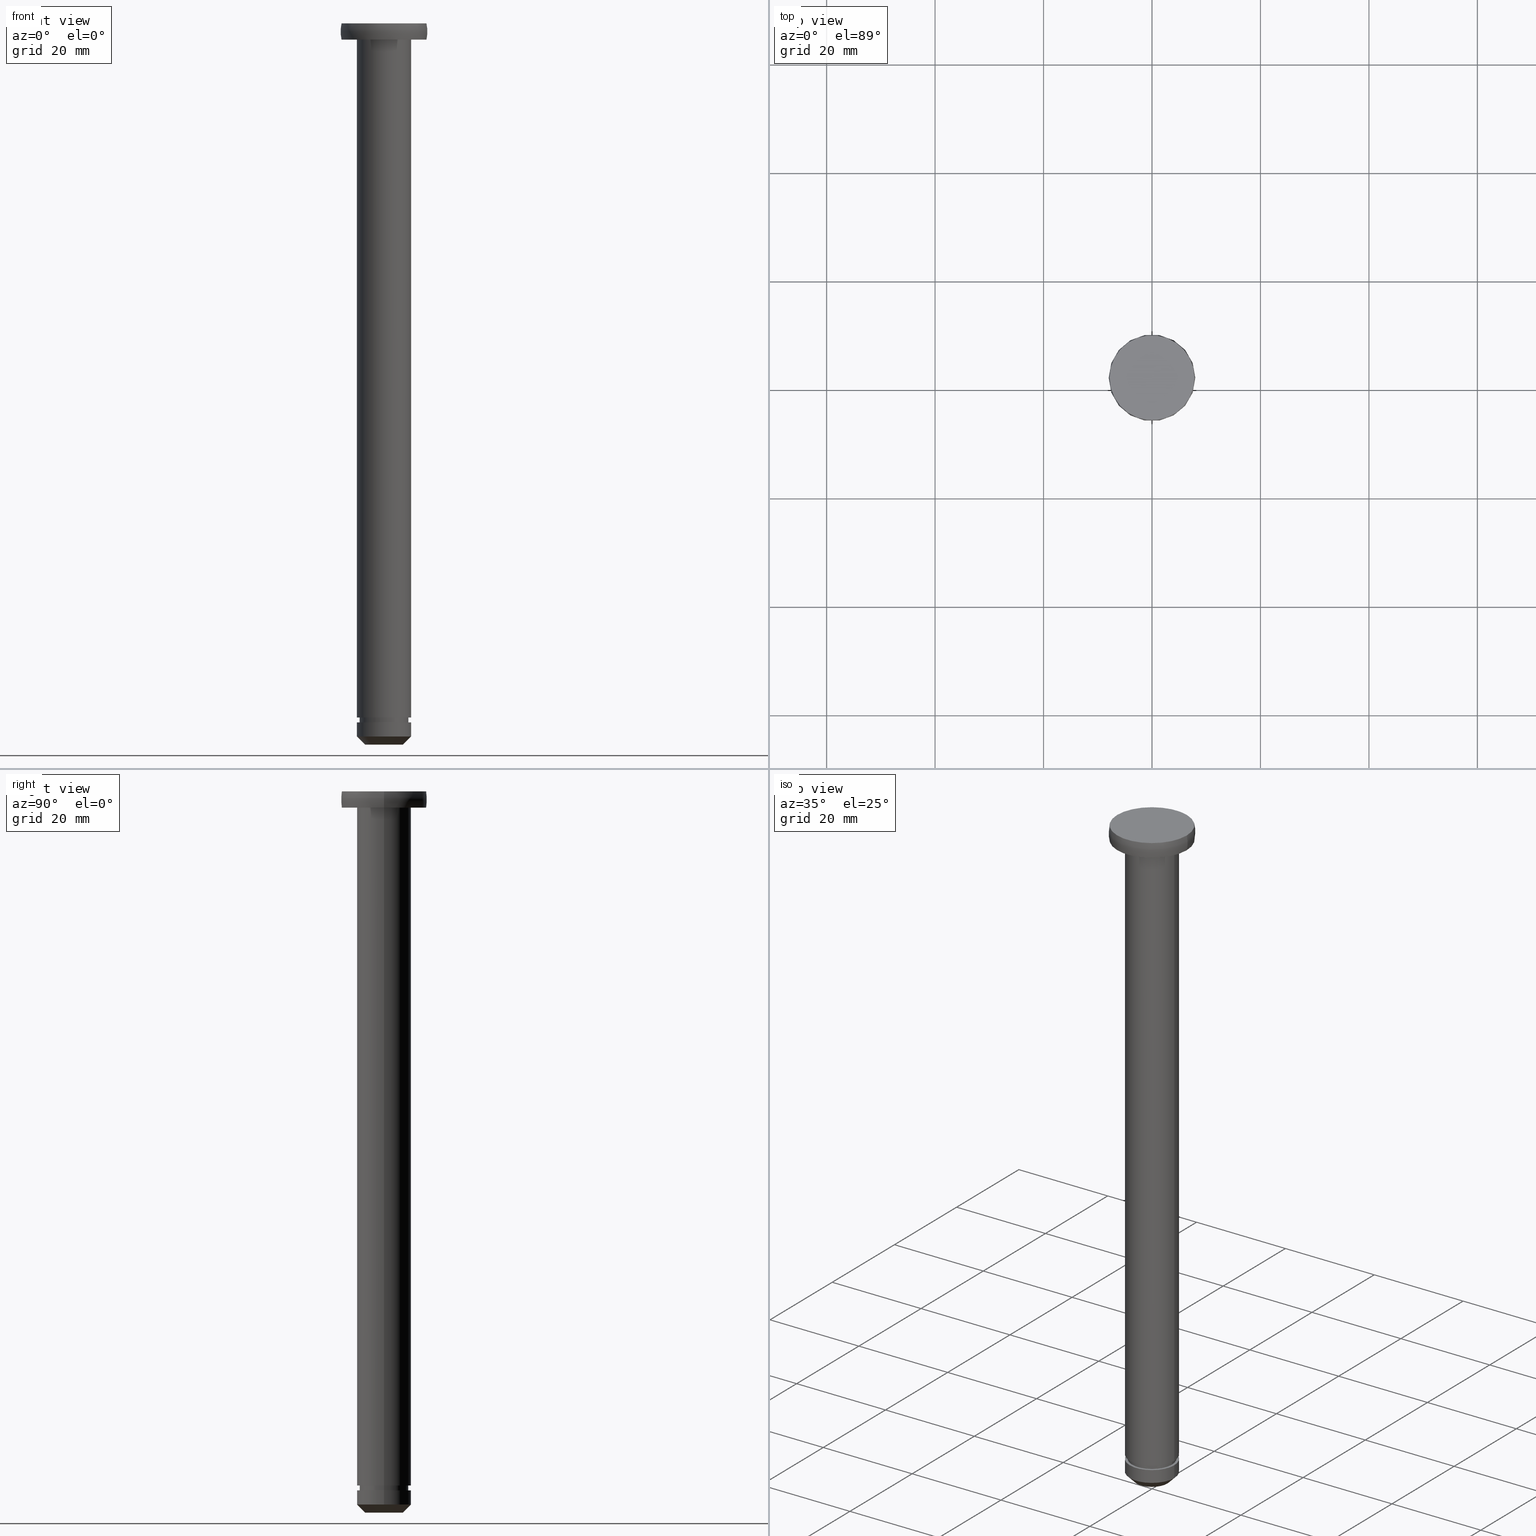
[diagram: canonical four-view strip — front | top / right | iso, engineering-drawing reading convention]
A machine part, canonical four-view strip (front | top / right | iso — engineering-drawing reading convention). The complete STEP part file that produces these views, byte-faithful:
ISO-10303-21;
HEADER;
FILE_DESCRIPTION (( 'STEP AP214' ),
    '1' );
FILE_NAME ('TH_121_10_130.STEP',
    '2016-08-24T02:03:50',
    ( '' ),
    ( '' ),
    'SwSTEP 2.0',
    'SolidWorks 2015',
    '' );
FILE_SCHEMA (( 'AUTOMOTIVE_DESIGN' ));
ENDSEC;

DATA;
#1 = DIRECTION ( 'NONE',  ( 0.0000000000000000000, 0.0000000000000000000, -1.000000000000000000 ) ) ;
#2 = DIRECTION ( 'NONE',  ( 0.0000000000000000000, 0.0000000000000000000, -1.000000000000000000 ) ) ;
#3 = AXIS2_PLACEMENT_3D ( 'NONE', #408, #1, #421 ) ;
#4 = MANIFOLD_SOLID_BREP ( '��]1', #20 ) ;
#5 = ORIENTED_EDGE ( 'NONE', *, *, #331, .T. ) ;
#6 = CARTESIAN_POINT ( 'NONE',  ( -3.500000000000000900, 4.286263797015737100E-016, -133.0000000360869900 ) ) ;
#7 = ORIENTED_EDGE ( 'NONE', *, *, #274, .T. ) ;
#8 = ORIENTED_EDGE ( 'NONE', *, *, #352, .T. ) ;
#9 = ORIENTED_EDGE ( 'NONE', *, *, #304, .T. ) ;
#10 = CARTESIAN_POINT ( 'NONE',  ( 0.0000000000000000000, 0.0000000000000000000, -3.000000018043495100 ) ) ;
#11 = CIRCLE ( 'NONE', #435, 3.500000000000000900 ) ;
#12 = ORIENTED_EDGE ( 'NONE', *, *, #174, .F. ) ;
#13 = CARTESIAN_POINT ( 'NONE',  ( -4.500000000000099500, 0.0000000000000000000, -128.9000000360869900 ) ) ;
#14 = VERTEX_POINT ( 'NONE', #204 ) ;
#15 = CARTESIAN_POINT ( 'NONE',  ( 0.0000000000000000000, 0.0000000000000000000, -128.9000000360869900 ) ) ;
#16 = ORIENTED_EDGE ( 'NONE', *, *, #188, .F. ) ;
#17 = CONICAL_SURFACE ( 'NONE', #58, 3.500000000000000900, 0.7853981633974520500 ) ;
#18 = CARTESIAN_POINT ( 'NONE',  ( 4.500000000000099500, 5.510910596163210800E-016, -3.280275378074167100E-014 ) ) ;
#19 = FACE_OUTER_BOUND ( 'NONE', #163, .T. ) ;
#20 = CLOSED_SHELL ( 'NONE', ( #130, #460, #41, #251, #97, #322, #278, #242, #218, #109, #74, #404, #166, #430, #364 ) ) ;
#21 = ORIENTED_EDGE ( 'NONE', *, *, #99, .F. ) ;
#22 = AXIS2_PLACEMENT_3D ( 'NONE', #141, #431, #298 ) ;
#23 = CARTESIAN_POINT ( 'NONE',  ( 0.0000000000000000000, 0.0000000000000000000, -131.5000000360869900 ) ) ;
#24 = DIRECTION ( 'NONE',  ( -1.000000000000000000, 0.0000000000000000000, 0.0000000000000000000 ) ) ;
#25 = ORIENTED_EDGE ( 'NONE', *, *, #69, .T. ) ;
#26 = ADVANCED_BREP_SHAPE_REPRESENTATION ( '', ( #4, #398 ), #465 ) ;
#27 = VECTOR ( 'NONE', #334, 1000.000000000000000 ) ;
#28 = CIRCLE ( 'NONE', #345, 5.000000000000013300 ) ;
#29 = CARTESIAN_POINT ( 'NONE',  ( -7.828427118366898100, 0.0000000000000000000, -3.280275356898344000E-014 ) ) ;
#30 = APPLICATION_CONTEXT ( 'automotive_design' ) ;
#31 = DIRECTION ( 'NONE',  ( 0.0000000000000000000, 0.0000000000000000000, -1.000000000000000000 ) ) ;
#32 = AXIS2_PLACEMENT_3D ( 'NONE', #138, #61, #151 ) ;
#33 = VECTOR ( 'NONE', #337, 1000.000000000000000 ) ;
#34 = DIRECTION ( 'NONE',  ( 0.0000000000000000000, -0.0000000000000000000, 1.000000000000000000 ) ) ;
#35 = ORIENTED_EDGE ( 'NONE', *, *, #250, .T. ) ;
#36 = CARTESIAN_POINT ( 'NONE',  ( 0.0000000000000000000, 0.0000000000000000000, -131.5000000360869900 ) ) ;
#37 =( GEOMETRIC_REPRESENTATION_CONTEXT ( 3 ) GLOBAL_UNCERTAINTY_ASSIGNED_CONTEXT ( ( #185 ) ) GLOBAL_UNIT_ASSIGNED_CONTEXT ( ( #66, #152, #117 ) ) REPRESENTATION_CONTEXT ( 'NONE', 'WORKASPACE' ) );
#38 = DIRECTION ( 'NONE',  ( 1.000000000000000000, 0.0000000000000000000, 0.0000000000000000000 ) ) ;
#39 = DIRECTION ( 'NONE',  ( 0.0000000000000000000, 0.0000000000000000000, -1.000000000000000000 ) ) ;
#40 = CARTESIAN_POINT ( 'NONE',  ( 0.0000000000000000000, 0.0000000000000000000, -3.280275378074167100E-014 ) ) ;
#41 = ADVANCED_FACE ( 'NONE', ( #452 ), #281, .T. ) ;
#42 = AXIS2_PLACEMENT_3D ( 'NONE', #381, #349, #343 ) ;
#43 = DIRECTION ( 'NONE',  ( -1.000000000000000000, 0.0000000000000000000, 0.0000000000000000000 ) ) ;
#44 = DIRECTION ( 'NONE',  ( 0.0000000000000000000, 0.0000000000000000000, 1.000000000000000000 ) ) ;
#45 = DIRECTION ( 'NONE',  ( -1.000000000000000000, 0.0000000000000000000, -0.0000000000000000000 ) ) ;
#46 = ORIENTED_EDGE ( 'NONE', *, *, #358, .T. ) ;
#47 = EDGE_CURVE ( 'NONE', #433, #445, #416, .T. ) ;
#48 = DIRECTION ( 'NONE',  ( 1.000000000000000000, 0.0000000000000000000, 0.0000000000000000000 ) ) ;
#49 = STYLED_ITEM ( 'NONE', ( #123 ), #26 ) ;
#50 = VECTOR ( 'NONE', #380, 1000.000000000000000 ) ;
#51 = AXIS2_PLACEMENT_3D ( 'NONE', #267, #450, #375 ) ;
#52 = DIRECTION ( 'NONE',  ( 0.0000000000000000000, 0.0000000000000000000, -1.000000000000000000 ) ) ;
#53 = SHAPE_REPRESENTATION ( 'TH_121_10_130', ( #262, #210 ), #239 ) ;
#54 = PLANE ( 'NONE',  #314 ) ;
#55 = CARTESIAN_POINT ( 'NONE',  ( -5.000000000000000000, 0.0000000000000000000, -128.0000000360869900 ) ) ;
#56 = CARTESIAN_POINT ( 'NONE',  ( 0.0000000000000000000, 0.0000000000000000000, -128.9000000360869900 ) ) ;
#57 = SURFACE_STYLE_USAGE ( .BOTH. , #307 ) ;
#58 = AXIS2_PLACEMENT_3D ( 'NONE', #365, #444, #48 ) ;
#59 = DIRECTION ( 'NONE',  ( -1.000000000000000000, 0.0000000000000000000, 0.0000000000000000000 ) ) ;
#60 = COLOUR_RGB ( '',0.7921568627450980000, 0.8196078431372548800, 0.9333333333333333500 ) ;
#61 = DIRECTION ( 'NONE',  ( 0.0000000000000000000, 0.0000000000000000000, -1.000000000000000000 ) ) ;
#62 = CIRCLE ( 'NONE', #382, 5.000000000000000000 ) ;
#63 = CARTESIAN_POINT ( 'NONE',  ( 0.0000000000000000000, 0.0000000000000000000, -1.500000009021790000 ) ) ;
#64 = EDGE_CURVE ( 'NONE', #420, #216, #98, .T. ) ;
#65 = AXIS2_PLACEMENT_3D ( 'NONE', #120, #406, #215 ) ;
#66 =( LENGTH_UNIT ( ) NAMED_UNIT ( * ) SI_UNIT ( .MILLI., .METRE. ) );
#67 = CIRCLE ( 'NONE', #272, 5.000000000000000000 ) ;
#68 = AXIS2_PLACEMENT_3D ( 'NONE', #428, #159, #351 ) ;
#69 = EDGE_CURVE ( 'NONE', #433, #342, #217, .T. ) ;
#70 = PRESENTATION_LAYER_ASSIGNMENT (  '', '', ( #49 ) ) ;
#71 = ITEM_DEFINED_TRANSFORMATION ( 'NONE', 'NONE', #210,  #398 ) ;
#72 = LINE ( 'NONE', #154, #336 ) ;
#73 = PRODUCT_CONTEXT ( 'NONE', #30, 'mechanical' ) ;
#74 = ADVANCED_FACE ( 'NONE', ( #308, #179 ), #54, .T. ) ;
#75 = ORIENTED_EDGE ( 'NONE', *, *, #271, .F. ) ;
#76 = VERTEX_POINT ( 'NONE', #155 ) ;
#77 = CYLINDRICAL_SURFACE ( 'NONE', #22, 4.500000000000099500 ) ;
#78 = ORIENTED_EDGE ( 'NONE', *, *, #194, .F. ) ;
#79 = APPLICATION_CONTEXT ( 'automotive_design' ) ;
#80 = TOROIDAL_SURFACE ( 'NONE', #241, 1.357233208769998100, 6.642766791230085800 ) ;
#81 = CARTESIAN_POINT ( 'NONE',  ( -3.500000000000000900, 5.204748896376259600E-016, -133.0000000360869900 ) ) ;
#82 = ORIENTED_EDGE ( 'NONE', *, *, #64, .T. ) ;
#83 = EDGE_CURVE ( 'NONE', #14, #90, #320, .T. ) ;
#84 = TOROIDAL_SURFACE ( 'NONE', #169, 1.357233208769998100, 6.642766791230085800 ) ;
#85 = CARTESIAN_POINT ( 'NONE',  ( 7.828427118366898100, 9.587058212866361900E-016, -3.280275356898344000E-014 ) ) ;
#86 = FACE_OUTER_BOUND ( 'NONE', #114, .T. ) ;
#87 = CARTESIAN_POINT ( 'NONE',  ( -4.500000000000099500, 0.0000000000000000000, -3.280275378074167100E-014 ) ) ;
#88 = DIRECTION ( 'NONE',  ( 0.0000000000000000000, 0.0000000000000000000, -1.000000000000000000 ) ) ;
#89 = ORIENTED_EDGE ( 'NONE', *, *, #135, .F. ) ;
#90 = VERTEX_POINT ( 'NONE', #321 ) ;
#91 = ORIENTED_EDGE ( 'NONE', *, *, #277, .F. ) ;
#92 = CARTESIAN_POINT ( 'NONE',  ( -5.000000000000000000, 0.0000000000000000000, -3.000000018043495100 ) ) ;
#93 = VERTEX_POINT ( 'NONE', #195 ) ;
#94 = ORIENTED_EDGE ( 'NONE', *, *, #277, .T. ) ;
#95 = MECHANICAL_DESIGN_GEOMETRIC_PRESENTATION_REPRESENTATION (  '', ( #49 ), #115 ) ;
#96 = FILL_AREA_STYLE_COLOUR ( '', #324 ) ;
#97 = ADVANCED_FACE ( 'NONE', ( #19 ), #80, .T. ) ;
#98 = CIRCLE ( 'NONE', #213, 7.828427118366898100 ) ;
#99 = EDGE_CURVE ( 'NONE', #445, #129, #390, .T. ) ;
#100 = AXIS2_PLACEMENT_3D ( 'NONE', #229, #264, #230 ) ;
#101 = LINE ( 'NONE', #158, #299 ) ;
#102 = CIRCLE ( 'NONE', #402, 5.000000000000013300 ) ;
#103 = FACE_OUTER_BOUND ( 'NONE', #403, .T. ) ;
#104 = SURFACE_STYLE_USAGE ( .BOTH. , #356 ) ;
#105 = APPLICATION_PROTOCOL_DEFINITION ( 'draft international standard', 'automotive_design', 1998, #79 ) ;
#106 = EDGE_CURVE ( 'NONE', #379, #199, #72, .T. ) ;
#107 = CARTESIAN_POINT ( 'NONE',  ( 0.0000000000000000000, 0.0000000000000000000, 0.0000000000000000000 ) ) ;
#108 = CYLINDRICAL_SURFACE ( 'NONE', #65, 5.000000000000006200 ) ;
#109 = ADVANCED_FACE ( 'NONE', ( #142 ), #108, .T. ) ;
#110 = ORIENTED_EDGE ( 'NONE', *, *, #143, .T. ) ;
#111 = ORIENTED_EDGE ( 'NONE', *, *, #405, .T. ) ;
#112 = DIRECTION ( 'NONE',  ( 1.000000000000000000, 0.0000000000000000000, 0.0000000000000000000 ) ) ;
#113 = EDGE_LOOP ( 'NONE', ( #270, #268, #330, #243 ) ) ;
#114 = EDGE_LOOP ( 'NONE', ( #12, #333, #220, #339 ) ) ;
#115 =( GEOMETRIC_REPRESENTATION_CONTEXT ( 3 ) GLOBAL_UNCERTAINTY_ASSIGNED_CONTEXT ( ( #134 ) ) GLOBAL_UNIT_ASSIGNED_CONTEXT ( ( #464, #168, #440 ) ) REPRESENTATION_CONTEXT ( 'NONE', 'WORKASPACE' ) );
#116 = CARTESIAN_POINT ( 'NONE',  ( -1.357233208769998100, 0.0000000000000000000, -1.500000009021790000 ) ) ;
#117 =( NAMED_UNIT ( * ) SI_UNIT ( $, .STERADIAN. ) SOLID_ANGLE_UNIT ( ) );
#118 = DIRECTION ( 'NONE',  ( 0.0000000000000000000, -0.0000000000000000000, 1.000000000000000000 ) ) ;
#119 = CARTESIAN_POINT ( 'NONE',  ( 0.0000000000000000000, 0.0000000000000000000, -3.000000018043520000 ) ) ;
#120 = CARTESIAN_POINT ( 'NONE',  ( 0.0000000000000000000, 0.0000000000000000000, -3.280275378074167100E-014 ) ) ;
#121 = DIRECTION ( 'NONE',  ( 0.0000000000000000000, 0.0000000000000000000, -1.000000000000000000 ) ) ;
#122 = AXIS2_PLACEMENT_3D ( 'NONE', #234, #118, #275 ) ;
#123 = PRESENTATION_STYLE_ASSIGNMENT (( #104 ) ) ;
#124 = DIRECTION ( 'NONE',  ( -1.000000000000000000, 0.0000000000000000000, 0.0000000000000000000 ) ) ;
#125 = VERTEX_POINT ( 'NONE', #256 ) ;
#126 = CONICAL_SURFACE ( 'NONE', #156, 3.500000000000000900, 0.7853981633974520500 ) ;
#127 = CARTESIAN_POINT ( 'NONE',  ( 5.000000000000000000, 0.0000000000000000000, -3.000000018043507600 ) ) ;
#128 = PRESENTATION_LAYER_ASSIGNMENT (  '', '', ( #316 ) ) ;
#129 = VERTEX_POINT ( 'NONE', #363 ) ;
#130 = ADVANCED_FACE ( 'NONE', ( #286 ), #360, .T. ) ;
#131 = AXIS2_PLACEMENT_3D ( 'NONE', #348, #88, #45 ) ;
#132 = APPLICATION_CONTEXT ( 'automotive_design' ) ;
#133 = ORIENTED_EDGE ( 'NONE', *, *, #226, .T. ) ;
#134 = UNCERTAINTY_MEASURE_WITH_UNIT (LENGTH_MEASURE( 1.000000000000000100E-005 ), #464, 'distance_accuracy_value', 'NONE');
#135 = EDGE_CURVE ( 'NONE', #445, #433, #263, .T. ) ;
#136 = DIRECTION ( 'NONE',  ( 0.0000000000000000000, 0.0000000000000000000, 1.000000000000000000 ) ) ;
#137 = EDGE_LOOP ( 'NONE', ( #280, #89 ) ) ;
#138 = CARTESIAN_POINT ( 'NONE',  ( 0.0000000000000000000, 0.0000000000000000000, -133.0000000360869900 ) ) ;
#139 = CARTESIAN_POINT ( 'NONE',  ( -5.000000000000006200, 0.0000000000000000000, -3.280275378074167100E-014 ) ) ;
#140 = EDGE_LOOP ( 'NONE', ( #91, #35, #7, #78 ) ) ;
#141 = CARTESIAN_POINT ( 'NONE',  ( 0.0000000000000000000, 0.0000000000000000000, -3.280275378074167100E-014 ) ) ;
#142 = FACE_OUTER_BOUND ( 'NONE', #140, .T. ) ;
#143 = EDGE_CURVE ( 'NONE', #379, #191, #11, .T. ) ;
#144 = DIRECTION ( 'NONE',  ( 0.0000000000000000000, 0.0000000000000000000, -1.000000000000000000 ) ) ;
#145 = AXIS2_PLACEMENT_3D ( 'NONE', #10, #200, #309 ) ;
#146 = ORIENTED_EDGE ( 'NONE', *, *, #250, .F. ) ;
#147 = DIRECTION ( 'NONE',  ( -1.000000000000000000, 0.0000000000000000000, 0.0000000000000000000 ) ) ;
#148 = CARTESIAN_POINT ( 'NONE',  ( 5.000000000000000000, 6.123233995736766300E-016, -128.0000000360869900 ) ) ;
#149 = FACE_BOUND ( 'NONE', #436, .T. ) ;
#150 = CARTESIAN_POINT ( 'NONE',  ( 0.0000000000000000000, 0.0000000000000000000, -133.0000000360869900 ) ) ;
#151 = DIRECTION ( 'NONE',  ( -1.000000000000000000, 0.0000000000000000000, -0.0000000000000000000 ) ) ;
#152 =( NAMED_UNIT ( * ) PLANE_ANGLE_UNIT ( ) SI_UNIT ( $, .RADIAN. ) );
#153 = PLANE ( 'NONE',  #131 ) ;
#154 = CARTESIAN_POINT ( 'NONE',  ( 3.500000000000000900, 0.0000000000000000000, -133.0000000360869900 ) ) ;
#155 = CARTESIAN_POINT ( 'NONE',  ( -5.000000000000000000, 0.0000000000000000000, -128.9000000360869900 ) ) ;
#156 = AXIS2_PLACEMENT_3D ( 'NONE', #446, #255, #269 ) ;
#157 = DIRECTION ( 'NONE',  ( 0.0000000000000000000, 0.0000000000000000000, -1.000000000000000000 ) ) ;
#158 = CARTESIAN_POINT ( 'NONE',  ( 5.000000000000000000, 6.123233995736766300E-016, -3.280275378074167100E-014 ) ) ;
#159 = DIRECTION ( 'NONE',  ( 0.0000000000000000000, 0.0000000000000000000, -1.000000000000000000 ) ) ;
#160 = ORIENTED_EDGE ( 'NONE', *, *, #174, .T. ) ;
#161 = SHAPE_DEFINITION_REPRESENTATION ( #391, #192 ) ;
#162 = AXIS2_PLACEMENT_3D ( 'NONE', #429, #190, #231 ) ;
#163 = EDGE_LOOP ( 'NONE', ( #82, #312, #468, #313 ) ) ;
#164 = PRODUCT_DEFINITION_SHAPE ( 'NONE', 'NONE',  #469 ) ;
#165 = CARTESIAN_POINT ( 'NONE',  ( 0.0000000000000000000, 0.0000000000000000000, -3.280275378074167100E-014 ) ) ;
#166 = ADVANCED_FACE ( 'NONE', ( #276, #184 ), #153, .T. ) ;
#167 = DIRECTION ( 'NONE',  ( 0.0000000000000000000, 0.0000000000000000000, -1.000000000000000000 ) ) ;
#168 =( NAMED_UNIT ( * ) PLANE_ANGLE_UNIT ( ) SI_UNIT ( $, .RADIAN. ) );
#169 = AXIS2_PLACEMENT_3D ( 'NONE', #63, #144, #124 ) ;
#170 = CARTESIAN_POINT ( 'NONE',  ( 0.0000000000000000000, 0.0000000000000000000, 0.0000000000000000000 ) ) ;
#171 = DIRECTION ( 'NONE',  ( 1.000000000000000000, 0.0000000000000000000, 0.0000000000000000000 ) ) ;
#172 = ORIENTED_EDGE ( 'NONE', *, *, #415, .T. ) ;
#173 = LINE ( 'NONE', #232, #27 ) ;
#174 = EDGE_CURVE ( 'NONE', #191, #93, #377, .T. ) ;
#175 = APPLICATION_PROTOCOL_DEFINITION ( 'draft international standard', 'automotive_design', 1998, #467 ) ;
#176 = PRODUCT_DEFINITION_SHAPE ( 'NONE', 'NONE',  #340 ) ;
#177 = DIRECTION ( 'NONE',  ( -1.000000000000000000, 0.0000000000000000000, 0.0000000000000000000 ) ) ;
#178 = DIRECTION ( 'NONE',  ( -1.000000000000000000, 0.0000000000000000000, 0.0000000000000000000 ) ) ;
#179 = FACE_OUTER_BOUND ( 'NONE', #260, .T. ) ;
#180 = ORIENTED_EDGE ( 'NONE', *, *, #358, .F. ) ;
#181 = CARTESIAN_POINT ( 'NONE',  ( -5.000000000000000000, 0.0000000000000000000, -3.280275378074167100E-014 ) ) ;
#182 = DIRECTION ( 'NONE',  ( -1.000000000000000000, 0.0000000000000000000, 0.0000000000000000000 ) ) ;
#183 = DIRECTION ( 'NONE',  ( -1.000000000000000000, 0.0000000000000000000, 0.0000000000000000000 ) ) ;
#184 = FACE_BOUND ( 'NONE', #137, .T. ) ;
#185 = UNCERTAINTY_MEASURE_WITH_UNIT (LENGTH_MEASURE( 1.000000000000000100E-005 ), #66, 'distance_accuracy_value', 'NONE');
#186 = AXIS2_PLACEMENT_3D ( 'NONE', #107, #136, #171 ) ;
#187 = ORIENTED_EDGE ( 'NONE', *, *, #405, .F. ) ;
#188 = EDGE_CURVE ( 'NONE', #216, #420, #302, .T. ) ;
#189 = DIRECTION ( 'NONE',  ( 0.0000000000000000000, 0.0000000000000000000, -1.000000000000000000 ) ) ;
#190 = DIRECTION ( 'NONE',  ( 0.0000000000000000000, 0.0000000000000000000, -1.000000000000000000 ) ) ;
#191 = VERTEX_POINT ( 'NONE', #81 ) ;
#192 = SHAPE_REPRESENTATION ( 'shaft', ( #398 ), #465 ) ;
#193 = DIRECTION ( 'NONE',  ( 0.0000000000000000000, 0.0000000000000000000, -1.000000000000000000 ) ) ;
#194 = EDGE_CURVE ( 'NONE', #199, #93, #102, .T. ) ;
#195 = CARTESIAN_POINT ( 'NONE',  ( -5.000000000000013300, 6.123233995736782100E-016, -131.5000000360869900 ) ) ;
#196 = AXIS2_PLACEMENT_3D ( 'NONE', #119, #227, #350 ) ;
#197 = DIRECTION ( 'NONE',  ( 0.0000000000000000000, 0.0000000000000000000, -1.000000000000000000 ) ) ;
#198 = EDGE_LOOP ( 'NONE', ( #133, #94, #187, #319 ) ) ;
#199 = VERTEX_POINT ( 'NONE', #318 ) ;
#200 = DIRECTION ( 'NONE',  ( 0.0000000000000000000, 0.0000000000000000000, -1.000000000000000000 ) ) ;
#201 = VERTEX_POINT ( 'NONE', #92 ) ;
#202 = FILL_AREA_STYLE ('',( #240 ) ) ;
#203 =( REPRESENTATION_RELATIONSHIP ('NONE','NONE', #53, #192 ) REPRESENTATION_RELATIONSHIP_WITH_TRANSFORMATION ( #71 )SHAPE_REPRESENTATION_RELATIONSHIP( ) );
#204 = CARTESIAN_POINT ( 'NONE',  ( -7.828427118366898100, 0.0000000000000000000, -3.000000018043520000 ) ) ;
#205 = FILL_AREA_STYLE ('',( #96 ) ) ;
#206 = ORIENTED_EDGE ( 'NONE', *, *, #64, .F. ) ;
#207 = LINE ( 'NONE', #181, #341 ) ;
#208 = ORIENTED_EDGE ( 'NONE', *, *, #438, .F. ) ;
#209 = DIRECTION ( 'NONE',  ( 1.000000000000000000, 0.0000000000000000000, 0.0000000000000000000 ) ) ;
#210 = AXIS2_PLACEMENT_3D ( 'NONE', #170, #44, #112 ) ;
#211 = ORIENTED_EDGE ( 'NONE', *, *, #352, .F. ) ;
#212 = EDGE_CURVE ( 'NONE', #201, #246, #207, .T. ) ;
#213 = AXIS2_PLACEMENT_3D ( 'NONE', #238, #456, #24 ) ;
#214 = DIRECTION ( 'NONE',  ( 0.0000000000000000000, 0.0000000000000000000, 1.000000000000000000 ) ) ;
#215 = DIRECTION ( 'NONE',  ( -1.000000000000000000, 0.0000000000000000000, 0.0000000000000000000 ) ) ;
#216 = VERTEX_POINT ( 'NONE', #85 ) ;
#217 = LINE ( 'NONE', #87, #290 ) ;
#218 = ADVANCED_FACE ( 'NONE', ( #86 ), #126, .T. ) ;
#219 = DIRECTION ( 'NONE',  ( -1.000000000000000000, 0.0000000000000000000, 0.0000000000000000000 ) ) ;
#220 = ORIENTED_EDGE ( 'NONE', *, *, #106, .T. ) ;
#221 = SURFACE_STYLE_FILL_AREA ( #205 ) ;
#222 = PRODUCT_CONTEXT ( 'NONE', #79, 'mechanical' ) ;
#223 = AXIS2_PLACEMENT_3D ( 'NONE', #412, #252, #388 ) ;
#224 = EDGE_CURVE ( 'NONE', #129, #342, #386, .T. ) ;
#225 = CARTESIAN_POINT ( 'NONE',  ( 0.0000000000000000000, 0.0000000000000000000, -128.0000000360869900 ) ) ;
#226 = EDGE_CURVE ( 'NONE', #76, #125, #62, .T. ) ;
#227 = DIRECTION ( 'NONE',  ( 0.0000000000000000000, 0.0000000000000000000, -1.000000000000000000 ) ) ;
#228 = DIRECTION ( 'NONE',  ( 1.000000000000000000, 0.0000000000000000000, 0.0000000000000000000 ) ) ;
#229 = CARTESIAN_POINT ( 'NONE',  ( 0.0000000000000000000, 0.0000000000000000000, -128.9000000360869900 ) ) ;
#230 = DIRECTION ( 'NONE',  ( -1.000000000000000000, 0.0000000000000000000, 0.0000000000000000000 ) ) ;
#231 = DIRECTION ( 'NONE',  ( -1.000000000000000000, 0.0000000000000000000, 0.0000000000000000000 ) ) ;
#232 = CARTESIAN_POINT ( 'NONE',  ( 5.000000000000006200, 6.123233995736773200E-016, -3.280275378074167100E-014 ) ) ;
#233 = ORIENTED_EDGE ( 'NONE', *, *, #397, .T. ) ;
#234 = CARTESIAN_POINT ( 'NONE',  ( 7.828427118366898100, 0.0000000000000000000, -3.280275367486255800E-014 ) ) ;
#235 = EDGE_CURVE ( 'NONE', #420, #14, #357, .T. ) ;
#236 = CARTESIAN_POINT ( 'NONE',  ( 5.000000000000000000, 6.123233995736766300E-016, -3.000000018043495100 ) ) ;
#237 = EDGE_CURVE ( 'NONE', #191, #379, #258, .T. ) ;
#238 = CARTESIAN_POINT ( 'NONE',  ( 0.0000000000000000000, 0.0000000000000000000, -3.280275356898344000E-014 ) ) ;
#239 =( GEOMETRIC_REPRESENTATION_CONTEXT ( 3 ) GLOBAL_UNCERTAINTY_ASSIGNED_CONTEXT ( ( #315 ) ) GLOBAL_UNIT_ASSIGNED_CONTEXT ( ( #366, #354, #393 ) ) REPRESENTATION_CONTEXT ( 'NONE', 'WORKASPACE' ) );
#240 = FILL_AREA_STYLE_COLOUR ( '', #60 ) ;
#241 = AXIS2_PLACEMENT_3D ( 'NONE', #293, #157, #59 ) ;
#242 = ADVANCED_FACE ( 'NONE', ( #257 ), #449, .T. ) ;
#243 = ORIENTED_EDGE ( 'NONE', *, *, #69, .F. ) ;
#244 = APPLICATION_PROTOCOL_DEFINITION ( 'draft international standard', 'automotive_design', 1998, #30 ) ;
#245 = DIRECTION ( 'NONE',  ( -1.000000000000000000, 0.0000000000000000000, 0.0000000000000000000 ) ) ;
#246 = VERTEX_POINT ( 'NONE', #55 ) ;
#247 = CONTEXT_DEPENDENT_SHAPE_REPRESENTATION ( #203, #164 ) ;
#248 = ORIENTED_EDGE ( 'NONE', *, *, #224, .F. ) ;
#249 = FACE_OUTER_BOUND ( 'NONE', #400, .T. ) ;
#250 = EDGE_CURVE ( 'NONE', #125, #76, #376, .T. ) ;
#251 = ADVANCED_FACE ( 'NONE', ( #327 ), #17, .T. ) ;
#252 = DIRECTION ( 'NONE',  ( 0.0000000000000000000, 0.0000000000000000000, -1.000000000000000000 ) ) ;
#253 = DIRECTION ( 'NONE',  ( 0.0000000000000000000, 0.0000000000000000000, -1.000000000000000000 ) ) ;
#254 = ORIENTED_EDGE ( 'NONE', *, *, #235, .T. ) ;
#255 = DIRECTION ( 'NONE',  ( -0.0000000000000000000, -0.0000000000000000000, 1.000000000000000000 ) ) ;
#256 = CARTESIAN_POINT ( 'NONE',  ( 5.000000000000000000, 6.123233995736770200E-016, -128.9000000360869900 ) ) ;
#257 = FACE_OUTER_BOUND ( 'NONE', #392, .T. ) ;
#258 = CIRCLE ( 'NONE', #432, 3.500000000000000900 ) ;
#259 = CARTESIAN_POINT ( 'NONE',  ( 0.0000000000000000000, 0.0000000000000000000, 0.0000000000000000000 ) ) ;
#260 = EDGE_LOOP ( 'NONE', ( #284, #146 ) ) ;
#261 = SHAPE_DEFINITION_REPRESENTATION ( #176, #53 ) ;
#262 = AXIS2_PLACEMENT_3D ( 'NONE', #463, #439, #209 ) ;
#263 = CIRCLE ( 'NONE', #311, 4.500000000000099500 ) ;
#264 = DIRECTION ( 'NONE',  ( 0.0000000000000000000, 0.0000000000000000000, -1.000000000000000000 ) ) ;
#265 = DIRECTION ( 'NONE',  ( -0.7071067811865501300, 8.659560562354964900E-017, 0.7071067811865449100 ) ) ;
#266 = FACE_OUTER_BOUND ( 'NONE', #458, .T. ) ;
#267 = CARTESIAN_POINT ( 'NONE',  ( 0.0000000000000000000, 0.0000000000000000000, -3.280275356898344000E-014 ) ) ;
#268 = ORIENTED_EDGE ( 'NONE', *, *, #99, .T. ) ;
#269 = DIRECTION ( 'NONE',  ( 1.000000000000000000, 0.0000000000000000000, 0.0000000000000000000 ) ) ;
#270 = ORIENTED_EDGE ( 'NONE', *, *, #47, .T. ) ;
#271 = EDGE_CURVE ( 'NONE', #353, #384, #101, .T. ) ;
#272 = AXIS2_PLACEMENT_3D ( 'NONE', #225, #323, #182 ) ;
#273 = DIRECTION ( 'NONE',  ( 0.0000000000000000000, 0.0000000000000000000, -1.000000000000000000 ) ) ;
#274 = EDGE_CURVE ( 'NONE', #76, #93, #459, .T. ) ;
#275 = DIRECTION ( 'NONE',  ( 1.000000000000000000, 0.0000000000000000000, 0.0000000000000000000 ) ) ;
#276 = FACE_OUTER_BOUND ( 'NONE', #279, .T. ) ;
#277 = EDGE_CURVE ( 'NONE', #125, #199, #173, .T. ) ;
#278 = ADVANCED_FACE ( 'NONE', ( #305 ), #424, .T. ) ;
#279 = EDGE_LOOP ( 'NONE', ( #46, #233 ) ) ;
#280 = ORIENTED_EDGE ( 'NONE', *, *, #47, .F. ) ;
#281 = CYLINDRICAL_SURFACE ( 'NONE', #68, 5.000000000000006200 ) ;
#282 = CYLINDRICAL_SURFACE ( 'NONE', #371, 4.500000000000099500 ) ;
#283 =( NAMED_UNIT ( * ) PLANE_ANGLE_UNIT ( ) SI_UNIT ( $, .RADIAN. ) );
#284 = ORIENTED_EDGE ( 'NONE', *, *, #226, .F. ) ;
#285 = PRODUCT ( 'shaft', 'shaft', '', ( #73 ) ) ;
#286 = FACE_OUTER_BOUND ( 'NONE', #359, .T. ) ;
#287 =( LENGTH_UNIT ( ) NAMED_UNIT ( * ) SI_UNIT ( .MILLI., .METRE. ) );
#288 = PRODUCT_DEFINITION ( 'UNKNOWN', '', #414, #422 ) ;
#289 = DIRECTION ( 'NONE',  ( 0.0000000000000000000, 0.0000000000000000000, -1.000000000000000000 ) ) ;
#290 = VECTOR ( 'NONE', #31, 1000.000000000000000 ) ;
#291 = SURFACE_STYLE_FILL_AREA ( #202 ) ;
#292 = VECTOR ( 'NONE', #265, 1000.000000000000000 ) ;
#293 = CARTESIAN_POINT ( 'NONE',  ( 0.0000000000000000000, 0.0000000000000000000, -1.500000009021790000 ) ) ;
#294 = DIRECTION ( 'NONE',  ( 0.7071067811865501300, 0.0000000000000000000, 0.7071067811865449100 ) ) ;
#295 = APPLICATION_PROTOCOL_DEFINITION ( 'draft international standard', 'automotive_design', 1998, #132 ) ;
#296 = ORIENTED_EDGE ( 'NONE', *, *, #237, .F. ) ;
#297 = DIRECTION ( 'NONE',  ( 0.0000000000000000000, 0.0000000000000000000, -1.000000000000000000 ) ) ;
#298 = DIRECTION ( 'NONE',  ( -1.000000000000000000, 0.0000000000000000000, 0.0000000000000000000 ) ) ;
#299 = VECTOR ( 'NONE', #197, 1000.000000000000000 ) ;
#300 = ORIENTED_EDGE ( 'NONE', *, *, #135, .T. ) ;
#301 = AXIS2_PLACEMENT_3D ( 'NONE', #127, #121, #338 ) ;
#302 = CIRCLE ( 'NONE', #51, 7.828427118366898100 ) ;
#303 = DIRECTION ( 'NONE',  ( -1.000000000000000000, 0.0000000000000000000, 0.0000000000000000000 ) ) ;
#304 = EDGE_CURVE ( 'NONE', #342, #129, #461, .T. ) ;
#305 = FACE_OUTER_BOUND ( 'NONE', #394, .T. ) ;
#306 = DIRECTION ( 'NONE',  ( 0.0000000000000000000, 0.0000000000000000000, -1.000000000000000000 ) ) ;
#307 = SURFACE_SIDE_STYLE ('',( #291 ) ) ;
#308 = FACE_BOUND ( 'NONE', #426, .T. ) ;
#309 = DIRECTION ( 'NONE',  ( -1.000000000000000000, 0.0000000000000000000, 0.0000000000000000000 ) ) ;
#310 = CARTESIAN_POINT ( 'NONE',  ( 5.000000000000000000, 0.0000000000000000000, -128.9000000360869900 ) ) ;
#311 = AXIS2_PLACEMENT_3D ( 'NONE', #457, #306, #219 ) ;
#312 = ORIENTED_EDGE ( 'NONE', *, *, #438, .T. ) ;
#313 = ORIENTED_EDGE ( 'NONE', *, *, #235, .F. ) ;
#314 = AXIS2_PLACEMENT_3D ( 'NONE', #310, #34, #228 ) ;
#315 = UNCERTAINTY_MEASURE_WITH_UNIT (LENGTH_MEASURE( 1.000000000000000100E-005 ), #366, 'distance_accuracy_value', 'NONE');
#316 = STYLED_ITEM ( 'NONE', ( #387 ), #4 ) ;
#317 = ORIENTED_EDGE ( 'NONE', *, *, #271, .T. ) ;
#318 = CARTESIAN_POINT ( 'NONE',  ( 5.000000000000013300, 0.0000000000000000000, -131.5000000360869900 ) ) ;
#319 = ORIENTED_EDGE ( 'NONE', *, *, #274, .F. ) ;
#320 = CIRCLE ( 'NONE', #162, 7.828427118366898100 ) ;
#321 = CARTESIAN_POINT ( 'NONE',  ( 7.828427118366898100, 9.587058212866361900E-016, -3.000000018043520000 ) ) ;
#322 = ADVANCED_FACE ( 'NONE', ( #266 ), #84, .T. ) ;
#323 = DIRECTION ( 'NONE',  ( 0.0000000000000000000, 0.0000000000000000000, -1.000000000000000000 ) ) ;
#324 = COLOUR_RGB ( '',0.7921568627450980000, 0.8196078431372548800, 0.9333333333333333500 ) ;
#325 = FACE_OUTER_BOUND ( 'NONE', #113, .T. ) ;
#326 = AXIS2_PLACEMENT_3D ( 'NONE', #434, #289, #303 ) ;
#327 = FACE_OUTER_BOUND ( 'NONE', #411, .T. ) ;
#328 = PRODUCT ( 'TH_121_10_130', 'TH_121_10_130', '', ( #222 ) ) ;
#329 = UNCERTAINTY_MEASURE_WITH_UNIT (LENGTH_MEASURE( 1.000000000000000100E-005 ), #287, 'distance_accuracy_value', 'NONE');
#330 = ORIENTED_EDGE ( 'NONE', *, *, #304, .F. ) ;
#331 = EDGE_CURVE ( 'NONE', #201, #353, #425, .T. ) ;
#332 = PRODUCT_DEFINITION_CONTEXT ( 'detailed design', #132, 'design' ) ;
#333 = ORIENTED_EDGE ( 'NONE', *, *, #143, .F. ) ;
#334 = DIRECTION ( 'NONE',  ( 0.0000000000000000000, 0.0000000000000000000, -1.000000000000000000 ) ) ;
#335 = DIRECTION ( 'NONE',  ( -1.000000000000000000, -1.224646799147353200E-016, 0.0000000000000000000 ) ) ;
#336 = VECTOR ( 'NONE', #294, 1000.000000000000000 ) ;
#337 = DIRECTION ( 'NONE',  ( 0.0000000000000000000, 0.0000000000000000000, -1.000000000000000000 ) ) ;
#338 = DIRECTION ( 'NONE',  ( -1.000000000000000000, 0.0000000000000000000, -0.0000000000000000000 ) ) ;
#339 = ORIENTED_EDGE ( 'NONE', *, *, #194, .T. ) ;
#340 = PRODUCT_DEFINITION ( 'UNKNOWN', '', #361, #332 ) ;
#341 = VECTOR ( 'NONE', #273, 1000.000000000000000 ) ;
#342 = VERTEX_POINT ( 'NONE', #13 ) ;
#343 = DIRECTION ( 'NONE',  ( -1.000000000000000000, 0.0000000000000000000, 0.0000000000000000000 ) ) ;
#344 = CARTESIAN_POINT ( 'NONE',  ( 0.0000000000000000000, 0.0000000000000000000, -3.280275378074167100E-014 ) ) ;
#345 = AXIS2_PLACEMENT_3D ( 'NONE', #36, #39, #183 ) ;
#346 = CARTESIAN_POINT ( 'NONE',  ( 3.500000000000000900, 0.0000000000000000000, -133.0000000360869900 ) ) ;
#347 = CYLINDRICAL_SURFACE ( 'NONE', #447, 5.000000000000000000 ) ;
#348 = CARTESIAN_POINT ( 'NONE',  ( 4.500000000000099500, 0.0000000000000000000, -128.0000000360869900 ) ) ;
#349 = DIRECTION ( 'NONE',  ( 0.0000000000000000000, 0.0000000000000000000, -1.000000000000000000 ) ) ;
#350 = DIRECTION ( 'NONE',  ( -1.000000000000000000, 0.0000000000000000000, 0.0000000000000000000 ) ) ;
#351 = DIRECTION ( 'NONE',  ( -1.000000000000000000, 0.0000000000000000000, 0.0000000000000000000 ) ) ;
#352 = EDGE_CURVE ( 'NONE', #90, #14, #448, .T. ) ;
#353 = VERTEX_POINT ( 'NONE', #236 ) ;
#354 =( NAMED_UNIT ( * ) PLANE_ANGLE_UNIT ( ) SI_UNIT ( $, .RADIAN. ) );
#355 = AXIS2_PLACEMENT_3D ( 'NONE', #56, #418, #177 ) ;
#356 = SURFACE_SIDE_STYLE ('',( #221 ) ) ;
#357 = CIRCLE ( 'NONE', #409, 6.642766791230085800 ) ;
#358 = EDGE_CURVE ( 'NONE', #246, #384, #427, .T. ) ;
#359 = EDGE_LOOP ( 'NONE', ( #5, #317, #180, #383 ) ) ;
#360 = CYLINDRICAL_SURFACE ( 'NONE', #419, 5.000000000000000000 ) ;
#361 = PRODUCT_DEFINITION_FORMATION_WITH_SPECIFIED_SOURCE ( 'ANY', '', #328, .NOT_KNOWN. ) ;
#362 = SHAPE_REPRESENTATION_RELATIONSHIP ( 'NONE' , 'NONE' ,  #192, #26 ) ;
#363 = CARTESIAN_POINT ( 'NONE',  ( 4.500000000000099500, 5.510910596163210800E-016, -128.9000000360869900 ) ) ;
#364 = ADVANCED_FACE ( 'NONE', ( #103, #149 ), #385, .T. ) ;
#365 = CARTESIAN_POINT ( 'NONE',  ( 0.0000000000000000000, 0.0000000000000000000, -133.0000000360869900 ) ) ;
#366 =( LENGTH_UNIT ( ) NAMED_UNIT ( * ) SI_UNIT ( .MILLI., .METRE. ) );
#367 = ORIENTED_EDGE ( 'NONE', *, *, #212, .T. ) ;
#368 = MECHANICAL_DESIGN_GEOMETRIC_PRESENTATION_REPRESENTATION (  '', ( #316 ), #37 ) ;
#369 = DIRECTION ( 'NONE',  ( -1.000000000000000000, 0.0000000000000000000, 0.0000000000000000000 ) ) ;
#370 = DIRECTION ( 'NONE',  ( -1.000000000000000000, 0.0000000000000000000, 0.0000000000000000000 ) ) ;
#371 = AXIS2_PLACEMENT_3D ( 'NONE', #40, #167, #245 ) ;
#372 = ORIENTED_EDGE ( 'NONE', *, *, #224, .T. ) ;
#373 = DIRECTION ( 'NONE',  ( -1.000000000000000000, 0.0000000000000000000, 0.0000000000000000000 ) ) ;
#374 = CIRCLE ( 'NONE', #326, 5.000000000000000000 ) ;
#375 = DIRECTION ( 'NONE',  ( -1.000000000000000000, 0.0000000000000000000, 0.0000000000000000000 ) ) ;
#376 = CIRCLE ( 'NONE', #3, 5.000000000000000000 ) ;
#377 = LINE ( 'NONE', #6, #292 ) ;
#378 = ORIENTED_EDGE ( 'NONE', *, *, #237, .T. ) ;
#379 = VERTEX_POINT ( 'NONE', #346 ) ;
#380 = DIRECTION ( 'NONE',  ( 0.0000000000000000000, 0.0000000000000000000, -1.000000000000000000 ) ) ;
#381 = CARTESIAN_POINT ( 'NONE',  ( 0.0000000000000000000, 0.0000000000000000000, -128.0000000360869900 ) ) ;
#382 = AXIS2_PLACEMENT_3D ( 'NONE', #15, #297, #43 ) ;
#383 = ORIENTED_EDGE ( 'NONE', *, *, #212, .F. ) ;
#384 = VERTEX_POINT ( 'NONE', #148 ) ;
#385 = PLANE ( 'NONE',  #301 ) ;
#386 = CIRCLE ( 'NONE', #355, 4.500000000000099500 ) ;
#387 = PRESENTATION_STYLE_ASSIGNMENT (( #57 ) ) ;
#388 = DIRECTION ( 'NONE',  ( -1.000000000000000000, 0.0000000000000000000, 0.0000000000000000000 ) ) ;
#389 = PRODUCT_RELATED_PRODUCT_CATEGORY ( 'part', '', ( #328 ) ) ;
#390 = LINE ( 'NONE', #18, #33 ) ;
#391 = PRODUCT_DEFINITION_SHAPE ( 'NONE', 'NONE',  #288 ) ;
#392 = EDGE_LOOP ( 'NONE', ( #110, #378 ) ) ;
#393 =( NAMED_UNIT ( * ) SI_UNIT ( $, .STERADIAN. ) SOLID_ANGLE_UNIT ( ) );
#394 = EDGE_LOOP ( 'NONE', ( #206, #16 ) ) ;
#395 = ORIENTED_EDGE ( 'NONE', *, *, #188, .T. ) ;
#396 = DIRECTION ( 'NONE',  ( -1.224646799147353200E-016, 1.000000000000000000, 0.0000000000000000000 ) ) ;
#397 = EDGE_CURVE ( 'NONE', #384, #246, #67, .T. ) ;
#398 = AXIS2_PLACEMENT_3D ( 'NONE', #259, #214, #38 ) ;
#399 = EDGE_LOOP ( 'NONE', ( #21, #300, #25, #248 ) ) ;
#400 = EDGE_LOOP ( 'NONE', ( #75, #172, #367, #443 ) ) ;
#401 = CIRCLE ( 'NONE', #423, 6.642766791230085800 ) ;
#402 = AXIS2_PLACEMENT_3D ( 'NONE', #23, #455, #147 ) ;
#403 = EDGE_LOOP ( 'NONE', ( #453, #8 ) ) ;
#404 = ADVANCED_FACE ( 'NONE', ( #441 ), #282, .T. ) ;
#405 = EDGE_CURVE ( 'NONE', #93, #199, #28, .T. ) ;
#406 = DIRECTION ( 'NONE',  ( 0.0000000000000000000, 0.0000000000000000000, -1.000000000000000000 ) ) ;
#407 =( NAMED_UNIT ( * ) SI_UNIT ( $, .STERADIAN. ) SOLID_ANGLE_UNIT ( ) );
#408 = CARTESIAN_POINT ( 'NONE',  ( 0.0000000000000000000, 0.0000000000000000000, -128.9000000360869900 ) ) ;
#409 = AXIS2_PLACEMENT_3D ( 'NONE', #116, #413, #2 ) ;
#410 = CARTESIAN_POINT ( 'NONE',  ( 1.357233208769998100, 1.662131304816669500E-016, -1.500000009021790000 ) ) ;
#411 = EDGE_LOOP ( 'NONE', ( #296, #160, #111, #417 ) ) ;
#412 = CARTESIAN_POINT ( 'NONE',  ( 0.0000000000000000000, 0.0000000000000000000, -128.0000000360869900 ) ) ;
#413 = DIRECTION ( 'NONE',  ( -0.0000000000000000000, -1.000000000000000000, -0.0000000000000000000 ) ) ;
#414 = PRODUCT_DEFINITION_FORMATION_WITH_SPECIFIED_SOURCE ( 'ANY', '', #285, .NOT_KNOWN. ) ;
#415 = EDGE_CURVE ( 'NONE', #353, #201, #374, .T. ) ;
#416 = CIRCLE ( 'NONE', #42, 4.500000000000099500 ) ;
#417 = ORIENTED_EDGE ( 'NONE', *, *, #106, .F. ) ;
#418 = DIRECTION ( 'NONE',  ( 0.0000000000000000000, 0.0000000000000000000, -1.000000000000000000 ) ) ;
#419 = AXIS2_PLACEMENT_3D ( 'NONE', #344, #52, #370 ) ;
#420 = VERTEX_POINT ( 'NONE', #29 ) ;
#421 = DIRECTION ( 'NONE',  ( -1.000000000000000000, 0.0000000000000000000, 0.0000000000000000000 ) ) ;
#422 = PRODUCT_DEFINITION_CONTEXT ( 'detailed design', #467, 'design' ) ;
#423 = AXIS2_PLACEMENT_3D ( 'NONE', #410, #396, #335 ) ;
#424 = PLANE ( 'NONE',  #122 ) ;
#425 = CIRCLE ( 'NONE', #145, 5.000000000000000000 ) ;
#426 = EDGE_LOOP ( 'NONE', ( #9, #372 ) ) ;
#427 = CIRCLE ( 'NONE', #223, 5.000000000000000000 ) ;
#428 = CARTESIAN_POINT ( 'NONE',  ( 0.0000000000000000000, 0.0000000000000000000, -3.280275378074167100E-014 ) ) ;
#429 = CARTESIAN_POINT ( 'NONE',  ( 0.0000000000000000000, 0.0000000000000000000, -3.000000018043520000 ) ) ;
#430 = ADVANCED_FACE ( 'NONE', ( #249 ), #347, .T. ) ;
#431 = DIRECTION ( 'NONE',  ( 0.0000000000000000000, 0.0000000000000000000, -1.000000000000000000 ) ) ;
#432 = AXIS2_PLACEMENT_3D ( 'NONE', #150, #189, #373 ) ;
#433 = VERTEX_POINT ( 'NONE', #466 ) ;
#434 = CARTESIAN_POINT ( 'NONE',  ( 0.0000000000000000000, 0.0000000000000000000, -3.000000018043495100 ) ) ;
#435 = AXIS2_PLACEMENT_3D ( 'NONE', #451, #193, #369 ) ;
#436 = EDGE_LOOP ( 'NONE', ( #462, #454 ) ) ;
#437 = PRODUCT_RELATED_PRODUCT_CATEGORY ( 'part', '', ( #285 ) ) ;
#438 = EDGE_CURVE ( 'NONE', #216, #90, #401, .T. ) ;
#439 = DIRECTION ( 'NONE',  ( 0.0000000000000000000, 0.0000000000000000000, 1.000000000000000000 ) ) ;
#440 =( NAMED_UNIT ( * ) SI_UNIT ( $, .STERADIAN. ) SOLID_ANGLE_UNIT ( ) );
#441 = FACE_OUTER_BOUND ( 'NONE', #399, .T. ) ;
#442 = CARTESIAN_POINT ( 'NONE',  ( 4.500000000000099500, 5.510910596163210800E-016, -128.0000000360869900 ) ) ;
#443 = ORIENTED_EDGE ( 'NONE', *, *, #397, .F. ) ;
#444 = DIRECTION ( 'NONE',  ( -0.0000000000000000000, -0.0000000000000000000, 1.000000000000000000 ) ) ;
#445 = VERTEX_POINT ( 'NONE', #442 ) ;
#446 = CARTESIAN_POINT ( 'NONE',  ( 0.0000000000000000000, 0.0000000000000000000, -133.0000000360869900 ) ) ;
#447 = AXIS2_PLACEMENT_3D ( 'NONE', #165, #253, #178 ) ;
#448 = CIRCLE ( 'NONE', #196, 7.828427118366898100 ) ;
#449 = PLANE ( 'NONE',  #32 ) ;
#450 = DIRECTION ( 'NONE',  ( 0.0000000000000000000, 0.0000000000000000000, -1.000000000000000000 ) ) ;
#451 = CARTESIAN_POINT ( 'NONE',  ( 0.0000000000000000000, 0.0000000000000000000, -133.0000000360869900 ) ) ;
#452 = FACE_OUTER_BOUND ( 'NONE', #198, .T. ) ;
#453 = ORIENTED_EDGE ( 'NONE', *, *, #83, .T. ) ;
#454 = ORIENTED_EDGE ( 'NONE', *, *, #415, .F. ) ;
#455 = DIRECTION ( 'NONE',  ( 0.0000000000000000000, 0.0000000000000000000, -1.000000000000000000 ) ) ;
#456 = DIRECTION ( 'NONE',  ( 0.0000000000000000000, 0.0000000000000000000, -1.000000000000000000 ) ) ;
#457 = CARTESIAN_POINT ( 'NONE',  ( 0.0000000000000000000, 0.0000000000000000000, -128.0000000360869900 ) ) ;
#458 = EDGE_LOOP ( 'NONE', ( #208, #395, #254, #211 ) ) ;
#459 = LINE ( 'NONE', #139, #50 ) ;
#460 = ADVANCED_FACE ( 'NONE', ( #325 ), #77, .T. ) ;
#461 = CIRCLE ( 'NONE', #100, 4.500000000000099500 ) ;
#462 = ORIENTED_EDGE ( 'NONE', *, *, #331, .F. ) ;
#463 = CARTESIAN_POINT ( 'NONE',  ( 0.0000000000000000000, 0.0000000000000000000, 0.0000000000000000000 ) ) ;
#464 =( LENGTH_UNIT ( ) NAMED_UNIT ( * ) SI_UNIT ( .MILLI., .METRE. ) );
#465 =( GEOMETRIC_REPRESENTATION_CONTEXT ( 3 ) GLOBAL_UNCERTAINTY_ASSIGNED_CONTEXT ( ( #329 ) ) GLOBAL_UNIT_ASSIGNED_CONTEXT ( ( #287, #283, #407 ) ) REPRESENTATION_CONTEXT ( 'NONE', 'WORKASPACE' ) );
#466 = CARTESIAN_POINT ( 'NONE',  ( -4.500000000000099500, 0.0000000000000000000, -128.0000000360869900 ) ) ;
#467 = APPLICATION_CONTEXT ( 'automotive_design' ) ;
#468 = ORIENTED_EDGE ( 'NONE', *, *, #83, .F. ) ;
#469 = NEXT_ASSEMBLY_USAGE_OCCURRENCE ( 'NAUO1', ' ', ' ', #340, #288, $ ) ;
ENDSEC;
END-ISO-10303-21;
